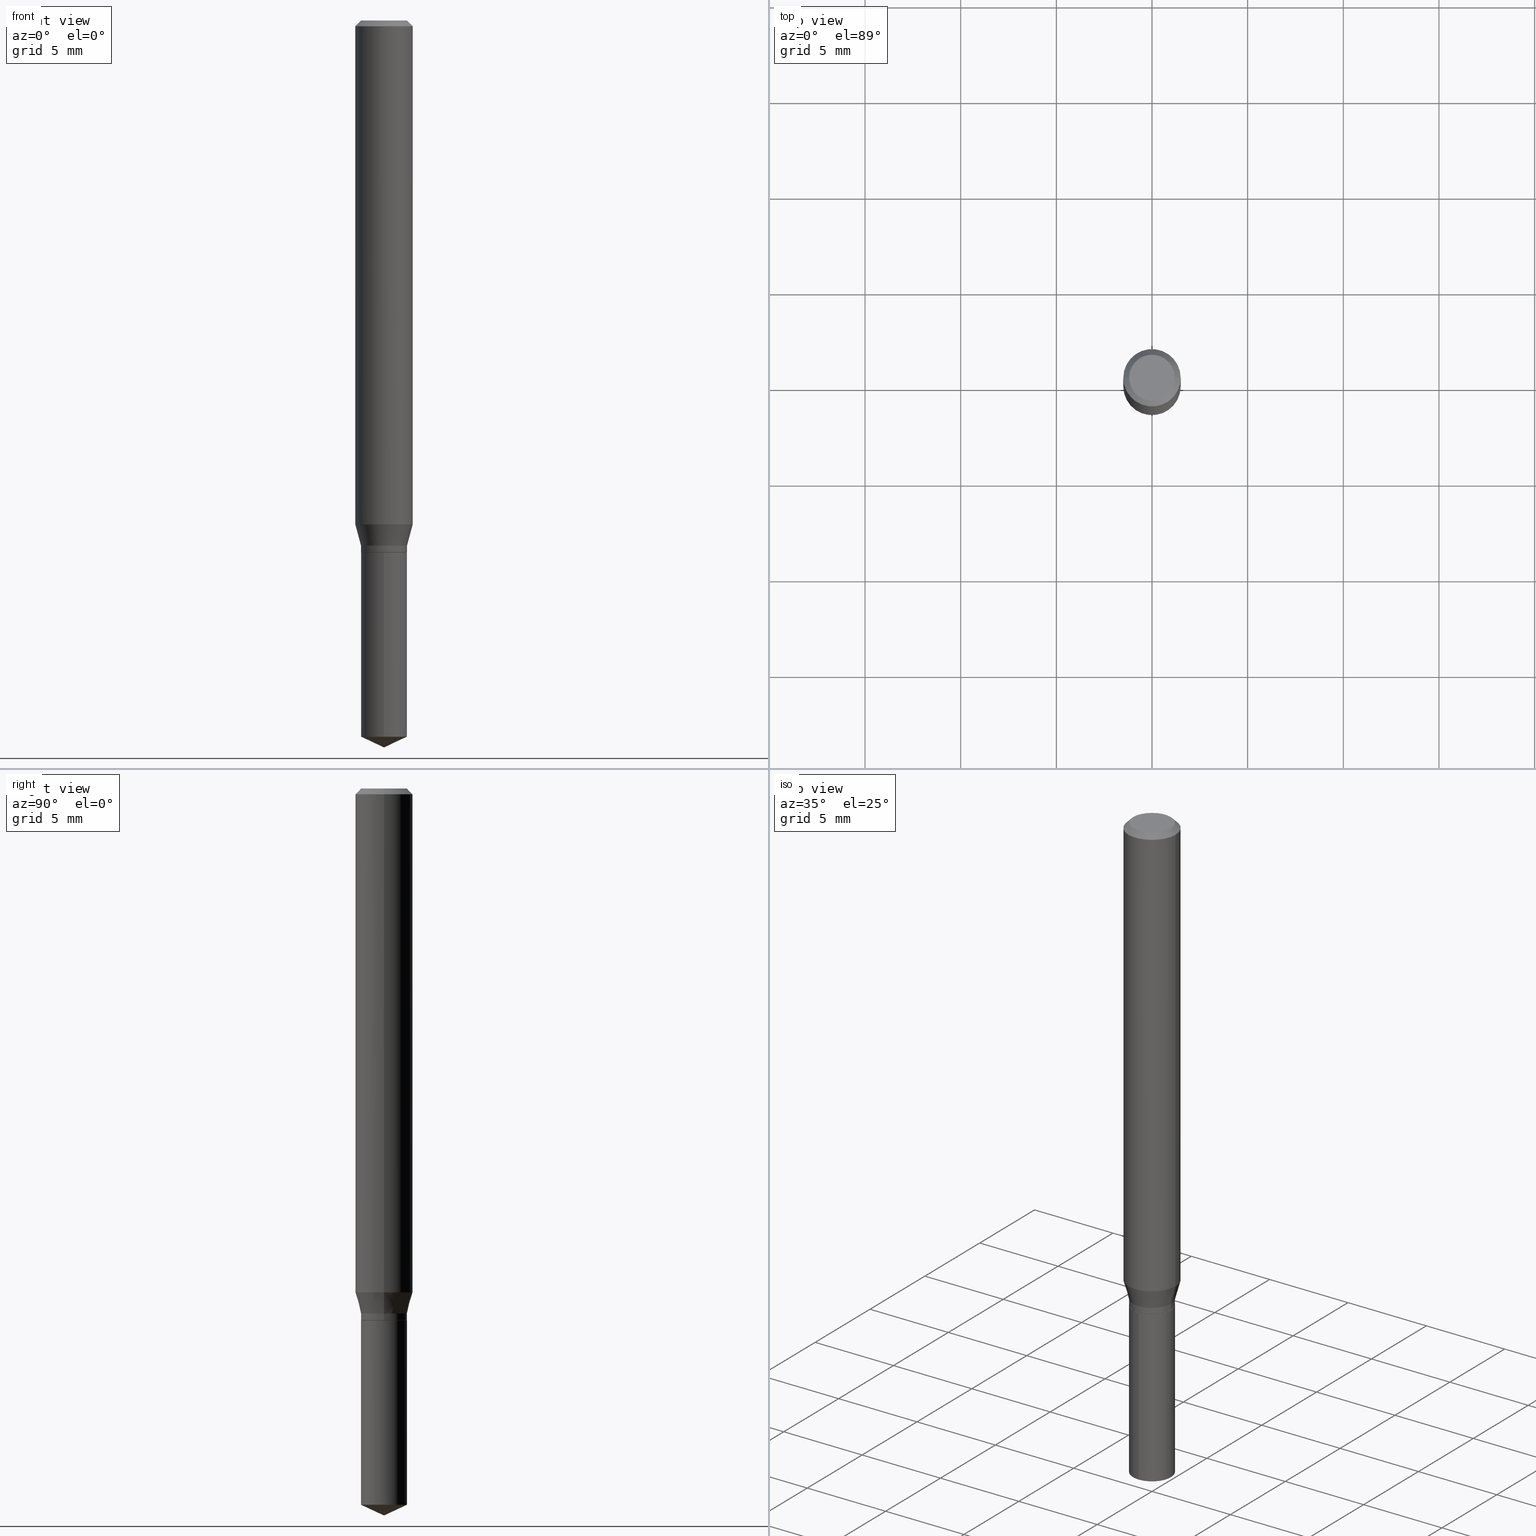
[diagram: canonical four-view strip — front | top / right | iso, engineering-drawing reading convention]
A machine part, canonical four-view strip (front | top / right | iso — engineering-drawing reading convention). The complete STEP part file that produces these views, byte-faithful:
ISO-10303-21;
HEADER;
FILE_DESCRIPTION (( 'STEP AP203' ),
    '1' );
FILE_NAME ('07650.STEP',
    '2024-04-24T00:23:26',
    ( '' ),
    ( '' ),
    'SwSTEP 2.0',
    'SolidWorks 2023',
    '' );
FILE_SCHEMA (( 'CONFIG_CONTROL_DESIGN' ));
ENDSEC;

DATA;
#1 = CARTESIAN_POINT ( 'NONE',  ( -0.04694999999999999174, -3.485177283750344594E-15, -1.094500000000000028 ) ) ;
#2 = APPROVAL_ROLE ( '' ) ;
#3 = CARTESIAN_POINT ( 'NONE',  ( -9.261924752013118283E-28, 1.322368428517963298E-13, 37.87397874015748300 ) ) ;
#4 = APPROVAL_PERSON_ORGANIZATION ( #404, #31, #17 ) ;
#5 = CC_DESIGN_PERSON_AND_ORGANIZATION_ASSIGNMENT ( #458, #324, ( #123 ) ) ;
#6 = ADVANCED_FACE ( 'NONE', ( #79 ), #54, .T. ) ;
#7 = CARTESIAN_POINT ( 'NONE',  ( 0.04744999999999997831, -4.103188869408462916E-15, -1.080300000000000038 ) ) ;
#8 = CARTESIAN_POINT ( 'NONE',  ( 2.641839951321803071E-29, -3.771847290352249705E-15, -1.080300000000000038 ) ) ;
#9 = DIRECTION ( 'NONE',  ( -2.445468806185136597E-29, 3.491481338843145583E-15, 1.000000000000000000 ) ) ;
#10 = CLOSED_SHELL ( 'NONE', ( #239, #52, #318, #60, #350 ) ) ;
#11 = VECTOR ( 'NONE', #68, 39.37007874015748143 ) ;
#12 = DIRECTION ( 'NONE',  ( 1.000000000000000000, -6.982962677686267499E-15, 0.000000000000000000 ) ) ;
#13 = CARTESIAN_POINT ( 'NONE',  ( 2.676565608369631794E-29, -3.821426325363822773E-15, -1.094499999999999806 ) ) ;
#14 = AXIS2_PLACEMENT_3D ( 'NONE', #15, #471, #126 ) ;
#15 = CARTESIAN_POINT ( 'NONE',  ( 0.000000000000000000, 0.000000000000000000, 0.000000000000000000 ) ) ;
#16 = AXIS2_PLACEMENT_3D ( 'NONE', #8, #163, #12 ) ;
#17 = APPROVAL_ROLE ( '' ) ;
#18 = ADVANCED_FACE ( 'NONE', ( #237 ), #412, .T. ) ;
#19 = ORIENTED_EDGE ( 'NONE', *, *, #378, .F. ) ;
#20 = DIRECTION ( 'NONE',  ( -2.445458899330790108E-29, 3.491495526022433599E-15, 1.000000000000000000 ) ) ;
#21 = AXIS2_PLACEMENT_3D ( 'NONE', #192, #142, #438 ) ;
#22 = EDGE_CURVE ( 'NONE', #408, #113, #132, .T. ) ;
#23 = ORIENTED_EDGE ( 'NONE', *, *, #377, .F. ) ;
#24 = EDGE_CURVE ( 'NONE', #315, #356, #136, .T. ) ;
#25 = AXIS2_PLACEMENT_3D ( 'NONE', #459, #379, #105 ) ;
#26 = EDGE_CURVE ( 'NONE', #356, #487, #248, .T. ) ;
#27 = PERSON_AND_ORGANIZATION_ROLE ( 'classification_officer' ) ;
#28 = EDGE_LOOP ( 'NONE', ( #61, #251, #212, #125 ) ) ;
#29 = PERSON ( 'UNSPECIFIED', 'UNSPECIFIED', 'UNSPECIFIED', ('UNSPECIFIED'), ('UNSPECIFIED'), ('UNSPECIFIED') ) ;
#30 = LINE ( 'NONE', #452, #161 ) ;
#31 = APPROVAL ( #199, 'UNSPECIFIED' ) ;
#32 = FACE_OUTER_BOUND ( 'NONE', #172, .T. ) ;
#33 = AXIS2_PLACEMENT_3D ( 'NONE', #247, #432, #131 ) ;
#34 = AXIS2_PLACEMENT_3D ( 'NONE', #242, #51, #203 ) ;
#35 =( GEOMETRIC_REPRESENTATION_CONTEXT ( 3 ) GLOBAL_UNCERTAINTY_ASSIGNED_CONTEXT ( ( #467 ) ) GLOBAL_UNIT_ASSIGNED_CONTEXT ( ( #75, #299, #40 ) ) REPRESENTATION_CONTEXT ( 'NONE', 'WORKASPACE' ) );
#36 = DIRECTION ( 'NONE',  ( -2.445468806185136597E-29, 3.491481338843145583E-15, 1.000000000000000000 ) ) ;
#37 = DIRECTION ( 'NONE',  ( 2.445468806185136597E-29, -3.491481338843145583E-15, -1.000000000000000000 ) ) ;
#38 = DIRECTION ( 'NONE',  ( 1.000000000000000000, -6.982962677686264344E-15, 0.000000000000000000 ) ) ;
#39 = CARTESIAN_POINT ( 'NONE',  ( 0.04744999999999997137, -4.151022163750613691E-15, -1.093999999999999861 ) ) ;
#40 =( NAMED_UNIT ( * ) SI_UNIT ( $, .STERADIAN. ) SOLID_ANGLE_UNIT ( ) );
#41 = EDGE_CURVE ( 'NONE', #373, #272, #211, .T. ) ;
#42 = LOCAL_TIME ( 20, 23, 26.00000000000000000, #258 ) ;
#43 =( LENGTH_UNIT ( ) NAMED_UNIT ( * ) SI_UNIT ( $, .METRE. ) );
#44 = ORIENTED_EDGE ( 'NONE', *, *, #70, .T. ) ;
#45 = ORIENTED_EDGE ( 'NONE', *, *, #255, .F. ) ;
#46 = EDGE_LOOP ( 'NONE', ( #397, #294, #433, #393 ) ) ;
#47 = VECTOR ( 'NONE', #376, 39.37007874015748143 ) ;
#48 = DIRECTION ( 'NONE',  ( 1.000000000000000000, -6.982962677686265922E-15, 4.876176775795935793E-29 ) ) ;
#49 = PERSON_AND_ORGANIZATION_ROLE ( 'creator' ) ;
#50 = CYLINDRICAL_SURFACE ( 'NONE', #14, 0.05905000000000006771 ) ;
#51 = DIRECTION ( 'NONE',  ( 2.438088387897960049E-29, -3.491481338843145188E-15, -1.000000000000000000 ) ) ;
#52 = ADVANCED_FACE ( 'NONE', ( #156 ), #448, .T. ) ;
#53 = ORIENTED_EDGE ( 'NONE', *, *, #241, .F. ) ;
#54 = CONICAL_SURFACE ( 'NONE', #65, 0.04694999999999999174, 0.7853981633972519916 ) ;
#55 = ORIENTED_EDGE ( 'NONE', *, *, #246, .F. ) ;
#56 = AXIS2_PLACEMENT_3D ( 'NONE', #216, #363, #413 ) ;
#57 = EDGE_LOOP ( 'NONE', ( #58, #354, #389, #23 ) ) ;
#58 = ORIENTED_EDGE ( 'NONE', *, *, #427, .F. ) ;
#59 = DIRECTION ( 'NONE',  ( -6.328713451373360701E-15, -0.9063077870366473832, 0.4226182617407049924 ) ) ;
#60 = ADVANCED_FACE ( 'NONE', ( #480 ), #219, .T. ) ;
#61 = ORIENTED_EDGE ( 'NONE', *, *, #26, .T. ) ;
#62 = CARTESIAN_POINT ( 'NONE',  ( 2.888098660104663328E-31, -4.123439461173779030E-17, -0.01181000000000006871 ) ) ;
#63 = DIRECTION ( 'NONE',  ( -2.445458899330790108E-29, 3.491495526022433205E-15, 1.000000000000000000 ) ) ;
#64 = EDGE_CURVE ( 'NONE', #315, #484, #274, .T. ) ;
#65 = AXIS2_PLACEMENT_3D ( 'NONE', #261, #305, #38 ) ;
#66 = PERSON_AND_ORGANIZATION_ROLE ( 'creator' ) ;
#67 = AXIS2_PLACEMENT_3D ( 'NONE', #180, #488, #260 ) ;
#68 = DIRECTION ( 'NONE',  ( -2.445458899330790108E-29, 3.491495526022433599E-15, 1.000000000000000000 ) ) ;
#69 = CARTESIAN_POINT ( 'NONE',  ( 3.604552949059590582E-29, -5.146357056815127930E-15, -1.473973701620545196 ) ) ;
#70 = EDGE_CURVE ( 'NONE', #356, #349, #137, .T. ) ;
#71 = CARTESIAN_POINT ( 'NONE',  ( -0.04744999999999997831, -3.434694762234082223E-15, -1.080300000000000038 ) ) ;
#72 = AXIS2_PLACEMENT_3D ( 'NONE', #482, #365, #287 ) ;
#73 = CARTESIAN_POINT ( 'NONE',  ( -0.04694999999999999174, -3.487826510924455795E-15, -1.094500000000000028 ) ) ;
#74 = EDGE_CURVE ( 'NONE', #431, #349, #469, .T. ) ;
#75 =( CONVERSION_BASED_UNIT ( 'INCH', #115 ) LENGTH_UNIT ( ) NAMED_UNIT ( #464 ) );
#76 = ORIENTED_EDGE ( 'NONE', *, *, #198, .T. ) ;
#77 = CARTESIAN_POINT ( 'NONE',  ( 3.658672935554494692E-29, -5.223595400746700193E-15, -1.496099999999999985 ) ) ;
#78 = CYLINDRICAL_SURFACE ( 'NONE', #352, 0.05905000000000006771 ) ;
#79 = FACE_OUTER_BOUND ( 'NONE', #201, .T. ) ;
#80 = EDGE_LOOP ( 'NONE', ( #90, #455 ) ) ;
#81 = VERTEX_POINT ( 'NONE', #337 ) ;
#82 = LINE ( 'NONE', #77, #298 ) ;
#83 = ORIENTED_EDGE ( 'NONE', *, *, #24, .F. ) ;
#84 = CONICAL_SURFACE ( 'NONE', #110, 84.42940631927338302, 1.134464013796311566 ) ;
#85 = LOCAL_TIME ( 20, 23, 26.00000000000000000, #447 ) ;
#86 = ORIENTED_EDGE ( 'NONE', *, *, #198, .F. ) ;
#87 = DIRECTION ( 'NONE',  ( 1.000000000000000000, -6.982962677686265133E-15, 0.000000000000000000 ) ) ;
#88 = DIRECTION ( 'NONE',  ( -2.445458899330790108E-29, 3.491495526022433205E-15, 1.000000000000000000 ) ) ;
#89 = APPLICATION_PROTOCOL_DEFINITION ( 'international standard', 'config_control_design', 1994, #396 ) ;
#90 = ORIENTED_EDGE ( 'NONE', *, *, #395, .T. ) ;
#91 = FACE_OUTER_BOUND ( 'NONE', #256, .T. ) ;
#92 = CALENDAR_DATE ( 2024, 23, 4 ) ;
#93 = VECTOR ( 'NONE', #268, 39.37007874015748143 ) ;
#94 = DIRECTION ( 'NONE',  ( 1.000000000000000000, -6.982962677686267499E-15, 0.000000000000000000 ) ) ;
#95 = CARTESIAN_POINT ( 'NONE',  ( 0.05904999999999999832, -4.463468013801466955E-16, -0.01181000000000006871 ) ) ;
#96 = APPROVAL_ROLE ( '' ) ;
#97 = ORIENTED_EDGE ( 'NONE', *, *, #171, .F. ) ;
#98 = CALENDAR_DATE ( 2024, 23, 4 ) ;
#99 = VECTOR ( 'NONE', #187, 39.37007874015748143 ) ;
#100 = CC_DESIGN_PERSON_AND_ORGANIZATION_ASSIGNMENT ( #322, #282, ( #388 ) ) ;
#101 = DIRECTION ( 'NONE',  ( -2.445458899330790108E-29, 3.491495526022433205E-15, 1.000000000000000000 ) ) ;
#102 = AXIS2_PLACEMENT_3D ( 'NONE', #420, #36, #264 ) ;
#103 = MANIFOLD_SOLID_BREP ( 'Body-Move/Copy2[2]', #153 ) ;
#104 = CARTESIAN_POINT ( 'NONE',  ( 3.371525281182035237E-16, 0.04744999999999616885, -1.094500000000000028 ) ) ;
#105 = DIRECTION ( 'NONE',  ( 1.000000000000000000, -6.982962677686266711E-15, 4.876185090822587894E-29 ) ) ;
#106 = CARTESIAN_POINT ( 'NONE',  ( 2.641839951321803071E-29, -3.771847290352249705E-15, -1.080300000000000038 ) ) ;
#107 = FACE_OUTER_BOUND ( 'NONE', #206, .T. ) ;
#108 = APPLICATION_PROTOCOL_DEFINITION ( 'international standard', 'config_control_design', 1994, #267 ) ;
#109 = PRODUCT_RELATED_PRODUCT_CATEGORY ( 'detail', '', ( #388 ) ) ;
#110 = AXIS2_PLACEMENT_3D ( 'NONE', #3, #101, #154 ) ;
#111 = ADVANCED_FACE ( 'NONE', ( #368 ), #166, .T. ) ;
#112 = DIRECTION ( 'NONE',  ( 0.2588190451025214611, 1.565188264969620982E-15, 0.9659258262890679791 ) ) ;
#113 = VERTEX_POINT ( 'NONE', #104 ) ;
#114 = ADVANCED_FACE ( 'NONE', ( #91 ), #402, .F. ) ;
#115 = LENGTH_MEASURE_WITH_UNIT ( LENGTH_MEASURE( 0.02539999999999999897 ), #43 );
#116 = ORIENTED_EDGE ( 'NONE', *, *, #255, .T. ) ;
#117 = PLANE ( 'NONE',  #308 ) ;
#118 = VERTEX_POINT ( 'NONE', #145 ) ;
#119 = CC_DESIGN_DATE_AND_TIME_ASSIGNMENT ( #178, #225, ( #385 ) ) ;
#120 = VECTOR ( 'NONE', #444, 39.37007874015748143 ) ;
#121 = CIRCLE ( 'NONE', #193, 0.04744999999999999218 ) ;
#122 = ORIENTED_EDGE ( 'NONE', *, *, #472, .F. ) ;
#123 = PRODUCT_DEFINITION_FORMATION_WITH_SPECIFIED_SOURCE ( 'ANY', '', #388, .NOT_KNOWN. ) ;
#124 = EDGE_CURVE ( 'NONE', #81, #189, #450, .T. ) ;
#125 = ORIENTED_EDGE ( 'NONE', *, *, #70, .F. ) ;
#126 = DIRECTION ( 'NONE',  ( 1.000000000000000000, -6.982962677686266711E-15, 4.876176775795936353E-29 ) ) ;
#127 = DIRECTION ( 'NONE',  ( -2.445468806185136597E-29, 3.491481338843145583E-15, 1.000000000000000000 ) ) ;
#128 = ORIENTED_EDGE ( 'NONE', *, *, #328, .F. ) ;
#129 = DATE_AND_TIME ( #473, #231 ) ;
#130 = DIRECTION ( 'NONE',  ( -6.982962677686266711E-15, -1.000000000000000000, 5.757319270103822354E-15 ) ) ;
#131 = DIRECTION ( 'NONE',  ( 1.000000000000000000, -6.982962677686269077E-15, 0.000000000000000000 ) ) ;
#132 = CIRCLE ( 'NONE', #338, 0.04744999999999999218 ) ;
#133 = EDGE_CURVE ( 'NONE', #238, #189, #249, .T. ) ;
#134 = AXIS2_PLACEMENT_3D ( 'NONE', #360, #460, #456 ) ;
#135 = CIRCLE ( 'NONE', #102, 0.04744999999999997137 ) ;
#136 = LINE ( 'NONE', #286, #120 ) ;
#137 = LINE ( 'NONE', #445, #457 ) ;
#138 = ORIENTED_EDGE ( 'NONE', *, *, #133, .F. ) ;
#139 = APPROVAL_DATE_TIME ( #409, #443 ) ;
#140 = CARTESIAN_POINT ( 'NONE',  ( 0.05904999999999999832, -4.535783407291118600E-16, -0.01181000000000006871 ) ) ;
#141 = FACE_OUTER_BOUND ( 'NONE', #28, .T. ) ;
#142 = DIRECTION ( 'NONE',  ( 0.000000000000000000, 0.000000000000000000, 1.000000000000000000 ) ) ;
#143 = DIRECTION ( 'NONE',  ( -6.982962677686266711E-15, -1.000000000000000000, 2.878659635051911177E-15 ) ) ;
#144 = APPROVAL ( #181, 'UNSPECIFIED' ) ;
#145 = CARTESIAN_POINT ( 'NONE',  ( -0.04724000000000000421, 3.504923541997677355E-16, -3.380025165670481712E-19 ) ) ;
#146 = CIRCLE ( 'NONE', #72, 0.04694999999999999174 ) ;
#147 = CIRCLE ( 'NONE', #470, 0.04724000000000000421 ) ;
#148 = DATE_AND_TIME ( #489, #290 ) ;
#149 = CARTESIAN_POINT ( 'NONE',  ( 0.04694999999999999174, -4.149276423081192976E-15, -1.094500000000000028 ) ) ;
#150 = CALENDAR_DATE ( 2024, 23, 4 ) ;
#151 = SHAPE_DEFINITION_REPRESENTATION ( #319, #195 ) ;
#152 = DIRECTION ( 'NONE',  ( 1.000000000000000000, -6.982962677686265133E-15, 0.000000000000000000 ) ) ;
#153 = CLOSED_SHELL ( 'NONE', ( #111, #344, #179, #18, #244, #222, #422, #311, #446, #208, #114, #6 ) ) ;
#154 = DIRECTION ( 'NONE',  ( -6.982962677686267499E-15, -1.000000000000000000, 3.520397390770493707E-15 ) ) ;
#155 = DIRECTION ( 'NONE',  ( -2.445468806185136597E-29, 3.491481338843145583E-15, 1.000000000000000000 ) ) ;
#156 = FACE_OUTER_BOUND ( 'NONE', #411, .T. ) ;
#157 = CARTESIAN_POINT ( 'NONE',  ( 3.658651059288794515E-29, -5.223626456482161457E-15, -1.496099999999999985 ) ) ;
#158 = LINE ( 'NONE', #73, #47 ) ;
#159 = EDGE_CURVE ( 'NONE', #331, #189, #333, .T. ) ;
#160 = CARTESIAN_POINT ( 'NONE',  ( 8.265746106709734507E-48, -1.180129479067563789E-33, -3.380025165646692144E-19 ) ) ;
#161 = VECTOR ( 'NONE', #257, 39.37007874015748143 ) ;
#162 = ORIENTED_EDGE ( 'NONE', *, *, #292, .F. ) ;
#163 = DIRECTION ( 'NONE',  ( -2.445468806185136597E-29, 3.491481338843145583E-15, 1.000000000000000000 ) ) ;
#164 = EDGE_LOOP ( 'NONE', ( #374, #348, #162 ) ) ;
#165 = EDGE_CURVE ( 'NONE', #490, #272, #82, .T. ) ;
#166 = CONICAL_SURFACE ( 'NONE', #67, 0.04694999999999999174, 0.7853981633972519916 ) ;
#167 = AXIS2_PLACEMENT_3D ( 'NONE', #390, #435, #87 ) ;
#168 = ORIENTED_EDGE ( 'NONE', *, *, #378, .T. ) ;
#169 = LOCAL_TIME ( 20, 23, 26.00000000000000000, #405 ) ;
#170 = ORIENTED_EDGE ( 'NONE', *, *, #74, .F. ) ;
#171 = EDGE_CURVE ( 'NONE', #279, #331, #421, .T. ) ;
#172 = EDGE_LOOP ( 'NONE', ( #436, #116 ) ) ;
#173 = PERSON_AND_ORGANIZATION ( #29, #415 ) ;
#174 = MECHANICAL_CONTEXT ( 'NONE', #267, 'mechanical' ) ;
#175 = AXIS2_PLACEMENT_3D ( 'NONE', #441, #127, #48 ) ;
#176 = ORIENTED_EDGE ( 'NONE', *, *, #330, .T. ) ;
#177 = EDGE_LOOP ( 'NONE', ( #285, #320, #361, #138 ) ) ;
#178 = DATE_AND_TIME ( #150, #169 ) ;
#179 = ADVANCED_FACE ( 'NONE', ( #353 ), #50, .T. ) ;
#180 = CARTESIAN_POINT ( 'NONE',  ( 2.676565608369632355E-29, -3.821426325363822773E-15, -1.094500000000000028 ) ) ;
#181 = APPROVAL_STATUS ( 'not_yet_approved' ) ;
#182 = DIRECTION ( 'NONE',  ( -2.445458899330790108E-29, 3.491495526022433205E-15, 1.000000000000000000 ) ) ;
#183 = EDGE_LOOP ( 'NONE', ( #53, #217, #44, #170 ) ) ;
#184 = AXIS2_PLACEMENT_3D ( 'NONE', #262, #229, #465 ) ;
#185 = ORIENTED_EDGE ( 'NONE', *, *, #64, .T. ) ;
#186 = CARTESIAN_POINT ( 'NONE',  ( 3.371525281182034744E-16, 0.04744999999999483659, -1.473973701620545418 ) ) ;
#187 = DIRECTION ( 'NONE',  ( 0.7071067811865453523, -7.319954787623248157E-15, -0.7071067811865496822 ) ) ;
#188 = SECURITY_CLASSIFICATION_LEVEL ( 'unclassified' ) ;
#189 = VERTEX_POINT ( 'NONE', #140 ) ;
#190 = DIRECTION ( 'NONE',  ( 1.000000000000000000, -6.982962677686266711E-15, 4.876176775795936353E-29 ) ) ;
#191 = DIRECTION ( 'NONE',  ( 1.000000000000000000, -6.982962677686266711E-15, 0.000000000000000000 ) ) ;
#192 = CARTESIAN_POINT ( 'NONE',  ( 0.000000000000000000, 0.000000000000000000, 0.000000000000000000 ) ) ;
#193 = AXIS2_PLACEMENT_3D ( 'NONE', #69, #63, #366 ) ;
#194 = CARTESIAN_POINT ( 'NONE',  ( 2.641839951321803071E-29, -3.771847290352249705E-15, -1.080300000000000038 ) ) ;
#195 = ADVANCED_BREP_SHAPE_REPRESENTATION ( '07650', ( #273, #103, #21 ), #35 ) ;
#196 = AXIS2_PLACEMENT_3D ( 'NONE', #398, #358, #323 ) ;
#197 = CONICAL_SURFACE ( 'NONE', #16, 0.04744999999999997831, 0.2617993877991501850 ) ;
#198 = EDGE_CURVE ( 'NONE', #373, #408, #214, .T. ) ;
#199 = APPROVAL_STATUS ( 'not_yet_approved' ) ;
#200 = DIRECTION ( 'NONE',  ( -2.445468806185136597E-29, 3.491481338843145583E-15, 1.000000000000000000 ) ) ;
#201 = EDGE_LOOP ( 'NONE', ( #19, #355, #380, #122 ) ) ;
#202 = DIRECTION ( 'NONE',  ( 6.439704144417016154E-15, 0.9063077870366503808, 0.4226182617406986641 ) ) ;
#203 = DIRECTION ( 'NONE',  ( -1.000000000000000000, 6.982962677686265922E-15, -4.876176775795935793E-29 ) ) ;
#204 = CIRCLE ( 'NONE', #391, 0.04744999999999997831 ) ;
#205 = SECURITY_CLASSIFICATION ( '', '', #188 ) ;
#206 = EDGE_LOOP ( 'NONE', ( #481, #430, #386, #97 ) ) ;
#207 = DESIGN_CONTEXT ( 'detailed design', #396, 'design' ) ;
#208 = ADVANCED_FACE ( 'NONE', ( #387 ), #477, .F. ) ;
#209 = ORIENTED_EDGE ( 'NONE', *, *, #263, .F. ) ;
#210 = CARTESIAN_POINT ( 'NONE',  ( -0.05904999999999999832, -1.411389119664253704E-15, -0.01181000000000006871 ) ) ;
#211 = CIRCLE ( 'NONE', #414, 0.04744999999999999218 ) ;
#212 = ORIENTED_EDGE ( 'NONE', *, *, #330, .F. ) ;
#213 = PERSON_AND_ORGANIZATION ( #29, #415 ) ;
#214 = LINE ( 'NONE', #351, #449 ) ;
#215 = FACE_OUTER_BOUND ( 'NONE', #57, .T. ) ;
#216 = CARTESIAN_POINT ( 'NONE',  ( 0.000000000000000000, 0.000000000000000000, 0.000000000000000000 ) ) ;
#217 = ORIENTED_EDGE ( 'NONE', *, *, #472, .T. ) ;
#218 = APPROVAL_DATE_TIME ( #148, #144 ) ;
#219 = CYLINDRICAL_SURFACE ( 'NONE', #266, 0.04744999999999999218 ) ;
#220 = CIRCLE ( 'NONE', #346, 0.05904999999999999832 ) ;
#221 = EDGE_LOOP ( 'NONE', ( #454, #364, #440, #86 ) ) ;
#222 = ADVANCED_FACE ( 'NONE', ( #439 ), #276, .T. ) ;
#223 = CARTESIAN_POINT ( 'NONE',  ( 2.535971230858911945E-29, -3.620694815649450242E-15, -1.037008210632200500 ) ) ;
#224 = CARTESIAN_POINT ( 'NONE',  ( 2.676565608369631794E-29, -3.821426325363822773E-15, -1.094499999999999806 ) ) ;
#225 = DATE_TIME_ROLE ( 'creation_date' ) ;
#226 = ORIENTED_EDGE ( 'NONE', *, *, #377, .T. ) ;
#227 = DIRECTION ( 'NONE',  ( -2.445468806185136877E-29, 3.491481338843145188E-15, 1.000000000000000000 ) ) ;
#228 = DIRECTION ( 'NONE',  ( -6.982962677686266711E-15, -1.000000000000000000, 2.878659635051911177E-15 ) ) ;
#229 = DIRECTION ( 'NONE',  ( 2.445468806185136597E-29, -3.491481338843145583E-15, -1.000000000000000000 ) ) ;
#230 = CC_DESIGN_PERSON_AND_ORGANIZATION_ASSIGNMENT ( #334, #27, ( #205 ) ) ;
#231 = LOCAL_TIME ( 20, 23, 26.00000000000000000, #394 ) ;
#232 = FACE_OUTER_BOUND ( 'NONE', #177, .T. ) ;
#233 = CARTESIAN_POINT ( 'NONE',  ( -0.04744999999999997137, -3.458611409405157610E-15, -1.093999999999999861 ) ) ;
#234 = LINE ( 'NONE', #71, #93 ) ;
#235 = AXIS2_PLACEMENT_3D ( 'NONE', #326, #483, #293 ) ;
#236 = VECTOR ( 'NONE', #343, 39.37007874015748143 ) ;
#237 = FACE_OUTER_BOUND ( 'NONE', #291, .T. ) ;
#238 = VERTEX_POINT ( 'NONE', #210 ) ;
#239 = ADVANCED_FACE ( 'NONE', ( #316 ), #475, .T. ) ;
#240 = VECTOR ( 'NONE', #59, 39.37007874015748143 ) ;
#241 = EDGE_CURVE ( 'NONE', #487, #431, #30, .T. ) ;
#242 = CARTESIAN_POINT ( 'NONE',  ( 4.132873053354867254E-48, -5.900647395337818946E-34, -1.690012582823346072E-19 ) ) ;
#243 = DIRECTION ( 'NONE',  ( -6.982962677686266711E-15, -1.000000000000000000, 2.878659635051911177E-15 ) ) ;
#244 = ADVANCED_FACE ( 'NONE', ( #141 ), #335, .T. ) ;
#245 = DIRECTION ( 'NONE',  ( -2.445458899330790108E-29, 3.491495526022433205E-15, 1.000000000000000000 ) ) ;
#246 = EDGE_CURVE ( 'NONE', #331, #279, #382, .T. ) ;
#247 = CARTESIAN_POINT ( 'NONE',  ( 2.675342873966538993E-29, -3.819680584694400481E-15, -1.093999999999999861 ) ) ;
#248 = CIRCLE ( 'NONE', #33, 0.04744999999999997137 ) ;
#249 = CIRCLE ( 'NONE', #476, 0.05904999999999999832 ) ;
#250 = CC_DESIGN_APPROVAL ( #443, ( #123 ) ) ;
#251 = ORIENTED_EDGE ( 'NONE', *, *, #241, .T. ) ;
#252 = LINE ( 'NONE', #403, #240 ) ;
#253 = FACE_OUTER_BOUND ( 'NONE', #164, .T. ) ;
#254 = LINE ( 'NONE', #259, #11 ) ;
#255 = EDGE_CURVE ( 'NONE', #113, #408, #339, .T. ) ;
#256 = EDGE_LOOP ( 'NONE', ( #275, #128 ) ) ;
#257 = DIRECTION ( 'NONE',  ( -2.445468806185136877E-29, 3.491481338843145188E-15, 1.000000000000000000 ) ) ;
#258 = COORDINATED_UNIVERSAL_TIME_OFFSET ( 5, 0, .BEHIND. ) ;
#259 = CARTESIAN_POINT ( 'NONE',  ( 3.371525281181942053E-16, 0.04744999999999616885, -1.094500000000000028 ) ) ;
#260 = DIRECTION ( 'NONE',  ( 1.000000000000000000, -6.982962677686264344E-15, 0.000000000000000000 ) ) ;
#261 = CARTESIAN_POINT ( 'NONE',  ( 2.676565608369632355E-29, -3.821426325363822773E-15, -1.094500000000000028 ) ) ;
#262 = CARTESIAN_POINT ( 'NONE',  ( 2.888098660104663328E-31, -4.123439461173779030E-17, -0.01181000000000006871 ) ) ;
#263 = EDGE_CURVE ( 'NONE', #272, #113, #254, .T. ) ;
#264 = DIRECTION ( 'NONE',  ( 1.000000000000000000, -6.982962677686269077E-15, 0.000000000000000000 ) ) ;
#265 = DIRECTION ( 'NONE',  ( 1.000000000000000000, -6.982962677686266711E-15, 4.876185090822587894E-29 ) ) ;
#266 = AXIS2_PLACEMENT_3D ( 'NONE', #332, #245, #143 ) ;
#267 = APPLICATION_CONTEXT ( 'configuration controlled 3d designs of mechanical parts and assemblies' ) ;
#268 = DIRECTION ( 'NONE',  ( -0.2588190451025214611, 5.211531920934550253E-15, 0.9659258262890679791 ) ) ;
#269 = ORIENTED_EDGE ( 'NONE', *, *, #165, .T. ) ;
#270 = CC_DESIGN_DATE_AND_TIME_ASSIGNMENT ( #362, #485, ( #205 ) ) ;
#271 = CARTESIAN_POINT ( 'NONE',  ( -0.04744999999999997831, -3.458611409405157610E-15, -1.080300000000000038 ) ) ;
#272 = VERTEX_POINT ( 'NONE', #186 ) ;
#273 = MANIFOLD_SOLID_BREP ( 'Body-Move/Copy2[1]', #10 ) ;
#274 = CIRCLE ( 'NONE', #196, 0.04694999999999999174 ) ;
#275 = ORIENTED_EDGE ( 'NONE', *, *, #64, .F. ) ;
#276 = CYLINDRICAL_SURFACE ( 'NONE', #175, 0.04744999999999997831 ) ;
#277 = ORIENTED_EDGE ( 'NONE', *, *, #292, .T. ) ;
#278 = APPROVAL_DATE_TIME ( #129, #31 ) ;
#279 = VERTEX_POINT ( 'NONE', #369 ) ;
#280 = AXIS2_PLACEMENT_3D ( 'NONE', #62, #37, #310 ) ;
#281 = CARTESIAN_POINT ( 'NONE',  ( 3.604552949059590582E-29, -5.146357056815127930E-15, -1.473973701620545196 ) ) ;
#282 = PERSON_AND_ORGANIZATION_ROLE ( 'design_owner' ) ;
#283 = EDGE_CURVE ( 'NONE', #279, #238, #329, .T. ) ;
#284 = ORIENTED_EDGE ( 'NONE', *, *, #124, .F. ) ;
#285 = ORIENTED_EDGE ( 'NONE', *, *, #283, .F. ) ;
#286 = CARTESIAN_POINT ( 'NONE',  ( 0.04694999999999999174, -4.149276423081192976E-15, -1.094500000000000028 ) ) ;
#287 = DIRECTION ( 'NONE',  ( 1.000000000000000000, -6.982962677686264344E-15, 0.000000000000000000 ) ) ;
#288 = DIRECTION ( 'NONE',  ( -6.982962677686266711E-15, -1.000000000000000000, 2.878659635051911177E-15 ) ) ;
#289 = AXIS2_PLACEMENT_3D ( 'NONE', #223, #155, #152 ) ;
#290 = LOCAL_TIME ( 20, 23, 26.00000000000000000, #327 ) ;
#291 = EDGE_LOOP ( 'NONE', ( #176, #296, #55, #342 ) ) ;
#292 = EDGE_CURVE ( 'NONE', #272, #373, #121, .T. ) ;
#293 = DIRECTION ( 'NONE',  ( 1.000000000000000000, -6.982962677686265922E-15, 4.876176775795935793E-29 ) ) ;
#294 = ORIENTED_EDGE ( 'NONE', *, *, #283, .T. ) ;
#295 = APPROVAL_STATUS ( 'not_yet_approved' ) ;
#296 = ORIENTED_EDGE ( 'NONE', *, *, #479, .T. ) ;
#297 = ORIENTED_EDGE ( 'NONE', *, *, #336, .F. ) ;
#298 = VECTOR ( 'NONE', #202, 39.37007874015748854 ) ;
#299 =( NAMED_UNIT ( * ) PLANE_ANGLE_UNIT ( ) SI_UNIT ( $, .RADIAN. ) );
#300 = ORIENTED_EDGE ( 'NONE', *, *, #41, .F. ) ;
#301 = CC_DESIGN_PERSON_AND_ORGANIZATION_ASSIGNMENT ( #173, #49, ( #385 ) ) ;
#302 = CARTESIAN_POINT ( 'NONE',  ( -9.261924752013118283E-28, 1.322368428517963298E-13, 37.87397874015748300 ) ) ;
#303 = CARTESIAN_POINT ( 'NONE',  ( -3.313415790561865369E-16, -0.04745000000000382245, -1.094499999999999806 ) ) ;
#304 = CARTESIAN_POINT ( 'NONE',  ( 0.04744999999999997831, -4.103188869408462916E-15, -1.080300000000000038 ) ) ;
#305 = DIRECTION ( 'NONE',  ( -2.445468806185136597E-29, 3.491481338843145583E-15, 1.000000000000000000 ) ) ;
#306 = CARTESIAN_POINT ( 'NONE',  ( -0.05904999999999999832, 3.711095515056362547E-16, -0.01181000000000006871 ) ) ;
#307 = DIRECTION ( 'NONE',  ( -2.445468806185136597E-29, 3.491481338843145583E-15, 1.000000000000000000 ) ) ;
#308 = AXIS2_PLACEMENT_3D ( 'NONE', #463, #426, #478 ) ;
#309 = APPROVAL_PERSON_ORGANIZATION ( #451, #144, #96 ) ;
#310 = DIRECTION ( 'NONE',  ( -1.000000000000000000, 6.982962677686266711E-15, 0.000000000000000000 ) ) ;
#311 = ADVANCED_FACE ( 'NONE', ( #232 ), #78, .T. ) ;
#312 = FACE_OUTER_BOUND ( 'NONE', #313, .T. ) ;
#313 = EDGE_LOOP ( 'NONE', ( #284, #410, #226, #425 ) ) ;
#314 = EDGE_LOOP ( 'NONE', ( #185, #168, #384, #83 ) ) ;
#315 = VERTEX_POINT ( 'NONE', #149 ) ;
#316 = FACE_OUTER_BOUND ( 'NONE', #221, .T. ) ;
#317 = AXIS2_PLACEMENT_3D ( 'NONE', #13, #88, #243 ) ;
#318 = ADVANCED_FACE ( 'NONE', ( #253 ), #84, .T. ) ;
#319 = PRODUCT_DEFINITION_SHAPE ( 'NONE', 'NONE',  #385 ) ;
#320 = ORIENTED_EDGE ( 'NONE', *, *, #171, .T. ) ;
#321 = CIRCLE ( 'NONE', #25, 0.04724000000000000421 ) ;
#322 = PERSON_AND_ORGANIZATION ( #29, #415 ) ;
#323 = DIRECTION ( 'NONE',  ( 1.000000000000000000, -6.982962677686264344E-15, 0.000000000000000000 ) ) ;
#324 = PERSON_AND_ORGANIZATION_ROLE ( 'design_supplier' ) ;
#325 = CARTESIAN_POINT ( 'NONE',  ( 0.05905000000000013016, -4.033038761766825162E-15, -1.037008210632200500 ) ) ;
#326 = CARTESIAN_POINT ( 'NONE',  ( 4.530180386399367457E-30, -7.005673001684947290E-15, -1.094500000000000028 ) ) ;
#327 = COORDINATED_UNIVERSAL_TIME_OFFSET ( 5, 0, .BEHIND. ) ;
#328 = EDGE_CURVE ( 'NONE', #484, #315, #146, .T. ) ;
#329 = LINE ( 'NONE', #406, #429 ) ;
#330 = EDGE_CURVE ( 'NONE', #349, #431, #204, .T. ) ;
#331 = VERTEX_POINT ( 'NONE', #325 ) ;
#332 = CARTESIAN_POINT ( 'NONE',  ( 2.676565608369631794E-29, -3.821426325363822773E-15, -1.094499999999999806 ) ) ;
#333 = LINE ( 'NONE', #428, #367 ) ;
#334 = PERSON_AND_ORGANIZATION ( #29, #415 ) ;
#335 = CYLINDRICAL_SURFACE ( 'NONE', #56, 0.04744999999999997831 ) ;
#336 = EDGE_CURVE ( 'NONE', #490, #373, #252, .T. ) ;
#337 = CARTESIAN_POINT ( 'NONE',  ( 0.04724000000000000421, -3.852183633974369345E-16, -3.380025165621689721E-19 ) ) ;
#338 = AXIS2_PLACEMENT_3D ( 'NONE', #224, #419, #228 ) ;
#339 = CIRCLE ( 'NONE', #399, 0.04744999999999999218 ) ;
#340 = CC_DESIGN_APPROVAL ( #31, ( #385 ) ) ;
#341 = CARTESIAN_POINT ( 'NONE',  ( 2.888098660104663328E-31, -4.123439461173779030E-17, -0.01181000000000006871 ) ) ;
#342 = ORIENTED_EDGE ( 'NONE', *, *, #434, .F. ) ;
#343 = DIRECTION ( 'NONE',  ( -0.7071067811865453523, 2.468850131082234184E-15, -0.7071067811865496822 ) ) ;
#344 = ADVANCED_FACE ( 'NONE', ( #215 ), #437, .T. ) ;
#345 = DIRECTION ( 'NONE',  ( -2.445468806185136597E-29, 3.491481338843145583E-15, 1.000000000000000000 ) ) ;
#346 = AXIS2_PLACEMENT_3D ( 'NONE', #341, #345, #423 ) ;
#347 = VECTOR ( 'NONE', #112, 39.37007874015748143 ) ;
#348 = ORIENTED_EDGE ( 'NONE', *, *, #336, .T. ) ;
#349 = VERTEX_POINT ( 'NONE', #304 ) ;
#350 = ADVANCED_FACE ( 'NONE', ( #32 ), #117, .F. ) ;
#351 = CARTESIAN_POINT ( 'NONE',  ( -3.313415790561865369E-16, -0.04745000000000382245, -1.094499999999999806 ) ) ;
#352 = AXIS2_PLACEMENT_3D ( 'NONE', #383, #9, #190 ) ;
#353 = FACE_OUTER_BOUND ( 'NONE', #46, .T. ) ;
#354 = ORIENTED_EDGE ( 'NONE', *, *, #124, .T. ) ;
#355 = ORIENTED_EDGE ( 'NONE', *, *, #328, .T. ) ;
#356 = VERTEX_POINT ( 'NONE', #39 ) ;
#357 = CC_DESIGN_SECURITY_CLASSIFICATION ( #205, ( #123 ) ) ;
#358 = DIRECTION ( 'NONE',  ( -2.445468806185136597E-29, 3.491481338843145583E-15, 1.000000000000000000 ) ) ;
#359 = DIRECTION ( 'NONE',  ( -2.445468806185136597E-29, 3.491481338843145583E-15, 1.000000000000000000 ) ) ;
#360 = CARTESIAN_POINT ( 'NONE',  ( 2.641839951321803071E-29, -3.771847290352249705E-15, -1.080300000000000038 ) ) ;
#361 = ORIENTED_EDGE ( 'NONE', *, *, #159, .T. ) ;
#362 = DATE_AND_TIME ( #92, #85 ) ;
#363 = DIRECTION ( 'NONE',  ( -2.445468806185136597E-29, 3.491481338843145583E-15, 1.000000000000000000 ) ) ;
#364 = ORIENTED_EDGE ( 'NONE', *, *, #263, .T. ) ;
#365 = DIRECTION ( 'NONE',  ( -2.445468806185136597E-29, 3.491481338843145583E-15, 1.000000000000000000 ) ) ;
#366 = DIRECTION ( 'NONE',  ( -6.982962677686266711E-15, -1.000000000000000000, 5.757319270103822354E-15 ) ) ;
#367 = VECTOR ( 'NONE', #474, 39.37007874015748143 ) ;
#368 = FACE_OUTER_BOUND ( 'NONE', #314, .T. ) ;
#369 = CARTESIAN_POINT ( 'NONE',  ( -0.05905000000000013016, -3.201119330183110355E-15, -1.037008210632200500 ) ) ;
#370 = DIRECTION ( 'NONE',  ( -2.445458899330790108E-29, 3.491495526022433205E-15, 1.000000000000000000 ) ) ;
#371 = DIRECTION ( 'NONE',  ( -2.445468806185136597E-29, 3.491481338843145583E-15, 1.000000000000000000 ) ) ;
#372 = EDGE_CURVE ( 'NONE', #189, #238, #220, .T. ) ;
#373 = VERTEX_POINT ( 'NONE', #424 ) ;
#374 = ORIENTED_EDGE ( 'NONE', *, *, #165, .F. ) ;
#375 = CC_DESIGN_APPROVAL ( #144, ( #205 ) ) ;
#376 = DIRECTION ( 'NONE',  ( -0.7071067811864086838, 7.493145998869852445E-15, 0.7071067811866863506 ) ) ;
#377 = EDGE_CURVE ( 'NONE', #118, #238, #381, .T. ) ;
#378 = EDGE_CURVE ( 'NONE', #484, #487, #158, .T. ) ;
#379 = DIRECTION ( 'NONE',  ( -2.445468806185136597E-29, 3.491481338843145583E-15, 1.000000000000000000 ) ) ;
#380 = ORIENTED_EDGE ( 'NONE', *, *, #24, .T. ) ;
#381 = LINE ( 'NONE', #306, #236 ) ;
#382 = CIRCLE ( 'NONE', #289, 0.05905000000000013016 ) ;
#383 = CARTESIAN_POINT ( 'NONE',  ( 0.000000000000000000, 0.000000000000000000, 0.000000000000000000 ) ) ;
#384 = ORIENTED_EDGE ( 'NONE', *, *, #26, .F. ) ;
#385 = PRODUCT_DEFINITION ( 'UNKNOWN', '', #123, #207 ) ;
#386 = ORIENTED_EDGE ( 'NONE', *, *, #434, .T. ) ;
#387 = FACE_OUTER_BOUND ( 'NONE', #80, .T. ) ;
#388 = PRODUCT ( '07650', '07650', '', ( #174 ) ) ;
#389 = ORIENTED_EDGE ( 'NONE', *, *, #372, .T. ) ;
#390 = CARTESIAN_POINT ( 'NONE',  ( 2.535971230858911945E-29, -3.620694815649450242E-15, -1.037008210632200500 ) ) ;
#391 = AXIS2_PLACEMENT_3D ( 'NONE', #106, #359, #94 ) ;
#392 = CONICAL_SURFACE ( 'NONE', #184, 0.05904999999999999832, 0.7853981633974452814 ) ;
#393 = ORIENTED_EDGE ( 'NONE', *, *, #159, .F. ) ;
#394 = COORDINATED_UNIVERSAL_TIME_OFFSET ( 5, 0, .BEHIND. ) ;
#395 = EDGE_CURVE ( 'NONE', #118, #81, #147, .T. ) ;
#396 = APPLICATION_CONTEXT ( 'configuration controlled 3d designs of mechanical parts and assemblies' ) ;
#397 = ORIENTED_EDGE ( 'NONE', *, *, #246, .T. ) ;
#398 = CARTESIAN_POINT ( 'NONE',  ( 2.676565608369632355E-29, -3.821426325363822773E-15, -1.094500000000000028 ) ) ;
#399 = AXIS2_PLACEMENT_3D ( 'NONE', #418, #182, #288 ) ;
#400 = DIRECTION ( 'NONE',  ( -2.445458899330790108E-29, 3.491495526022433205E-15, 1.000000000000000000 ) ) ;
#401 = DIRECTION ( 'NONE',  ( -2.445468806185136877E-29, 3.491481338843145188E-15, 1.000000000000000000 ) ) ;
#402 = PLANE ( 'NONE',  #235 ) ;
#403 = CARTESIAN_POINT ( 'NONE',  ( 3.658651059288795076E-29, -5.223626456482161457E-15, -1.496099999999999985 ) ) ;
#404 = PERSON_AND_ORGANIZATION ( #29, #415 ) ;
#405 = COORDINATED_UNIVERSAL_TIME_OFFSET ( 5, 0, .BEHIND. ) ;
#406 = CARTESIAN_POINT ( 'NONE',  ( -0.05905000000000006771, 4.195754854663396409E-16, -2.904631170795525045E-30 ) ) ;
#407 = DIRECTION ( 'NONE',  ( -6.982962677686267499E-15, -1.000000000000000000, 3.520397390770493707E-15 ) ) ;
#408 = VERTEX_POINT ( 'NONE', #303 ) ;
#409 = DATE_AND_TIME ( #98, #42 ) ;
#410 = ORIENTED_EDGE ( 'NONE', *, *, #395, .F. ) ;
#411 = EDGE_LOOP ( 'NONE', ( #297, #269, #300 ) ) ;
#412 = CONICAL_SURFACE ( 'NONE', #468, 0.04744999999999997831, 0.2617993877991501850 ) ;
#413 = DIRECTION ( 'NONE',  ( 1.000000000000000000, -6.982962677686265922E-15, 4.876176775795935793E-29 ) ) ;
#414 = AXIS2_PLACEMENT_3D ( 'NONE', #281, #400, #130 ) ;
#415 = ORGANIZATION ( 'UNSPECIFIED', 'UNSPECIFIED', '' ) ;
#416 = DIRECTION ( 'NONE',  ( 1.000000000000000000, -6.982962677686267499E-15, 0.000000000000000000 ) ) ;
#417 = PERSON_AND_ORGANIZATION ( #29, #415 ) ;
#418 = CARTESIAN_POINT ( 'NONE',  ( 2.676565608369631794E-29, -3.821426325363822773E-15, -1.094499999999999806 ) ) ;
#419 = DIRECTION ( 'NONE',  ( -2.445458899330790108E-29, 3.491495526022433205E-15, 1.000000000000000000 ) ) ;
#420 = CARTESIAN_POINT ( 'NONE',  ( 2.675342873966538993E-29, -3.819680584694400481E-15, -1.093999999999999861 ) ) ;
#421 = CIRCLE ( 'NONE', #167, 0.05905000000000013016 ) ;
#422 = ADVANCED_FACE ( 'NONE', ( #107 ), #197, .T. ) ;
#423 = DIRECTION ( 'NONE',  ( 1.000000000000000000, -6.982962677686266711E-15, 0.000000000000000000 ) ) ;
#424 = CARTESIAN_POINT ( 'NONE',  ( -3.313415790561772185E-16, -0.04745000000000514084, -1.473973701620544752 ) ) ;
#425 = ORIENTED_EDGE ( 'NONE', *, *, #133, .T. ) ;
#426 = DIRECTION ( 'NONE',  ( 2.445458899330789267E-29, -3.491495526022433599E-15, -1.000000000000000000 ) ) ;
#427 = EDGE_CURVE ( 'NONE', #81, #118, #321, .T. ) ;
#428 = CARTESIAN_POINT ( 'NONE',  ( 0.05905000000000006771, -4.123439461173745257E-16, 2.879382386107503723E-30 ) ) ;
#429 = VECTOR ( 'NONE', #227, 39.37007874015748143 ) ;
#430 = ORIENTED_EDGE ( 'NONE', *, *, #74, .T. ) ;
#431 = VERTEX_POINT ( 'NONE', #271 ) ;
#432 = DIRECTION ( 'NONE',  ( -2.445468806185136597E-29, 3.491481338843145583E-15, 1.000000000000000000 ) ) ;
#433 = ORIENTED_EDGE ( 'NONE', *, *, #372, .F. ) ;
#434 = EDGE_CURVE ( 'NONE', #349, #331, #462, .T. ) ;
#435 = DIRECTION ( 'NONE',  ( -2.445468806185136597E-29, 3.491481338843145583E-15, 1.000000000000000000 ) ) ;
#436 = ORIENTED_EDGE ( 'NONE', *, *, #22, .T. ) ;
#437 = CONICAL_SURFACE ( 'NONE', #280, 0.05904999999999999832, 0.7853981633974452814 ) ;
#438 = DIRECTION ( 'NONE',  ( 1.000000000000000000, 0.000000000000000000, 0.000000000000000000 ) ) ;
#439 = FACE_OUTER_BOUND ( 'NONE', #183, .T. ) ;
#440 = ORIENTED_EDGE ( 'NONE', *, *, #22, .F. ) ;
#441 = CARTESIAN_POINT ( 'NONE',  ( 0.000000000000000000, 0.000000000000000000, 0.000000000000000000 ) ) ;
#442 = EDGE_LOOP ( 'NONE', ( #209, #277, #76, #45 ) ) ;
#443 = APPROVAL ( #295, 'UNSPECIFIED' ) ;
#444 = DIRECTION ( 'NONE',  ( 0.7071067811864086838, -2.468850131080802401E-15, 0.7071067811866863506 ) ) ;
#445 = CARTESIAN_POINT ( 'NONE',  ( 0.04744999999999997831, -3.313415790562131610E-16, 2.313745880115170460E-30 ) ) ;
#446 = ADVANCED_FACE ( 'NONE', ( #312 ), #392, .T. ) ;
#447 = COORDINATED_UNIVERSAL_TIME_OFFSET ( 5, 0, .BEHIND. ) ;
#448 = CONICAL_SURFACE ( 'NONE', #461, 84.42940631927338302, 1.134464013796311566 ) ;
#449 = VECTOR ( 'NONE', #20, 39.37007874015748143 ) ;
#450 = LINE ( 'NONE', #95, #99 ) ;
#451 = PERSON_AND_ORGANIZATION ( #29, #415 ) ;
#452 = CARTESIAN_POINT ( 'NONE',  ( -0.04744999999999997831, 3.371525281181673841E-16, -2.334034700325952001E-30 ) ) ;
#453 = CARTESIAN_POINT ( 'NONE',  ( 2.888098660104663328E-31, -4.123439461173779030E-17, -0.01181000000000006871 ) ) ;
#454 = ORIENTED_EDGE ( 'NONE', *, *, #41, .T. ) ;
#455 = ORIENTED_EDGE ( 'NONE', *, *, #427, .T. ) ;
#456 = DIRECTION ( 'NONE',  ( 1.000000000000000000, -6.982962677686267499E-15, 0.000000000000000000 ) ) ;
#457 = VECTOR ( 'NONE', #401, 39.37007874015748143 ) ;
#458 = PERSON_AND_ORGANIZATION ( #29, #415 ) ;
#459 = CARTESIAN_POINT ( 'NONE',  ( 8.265746106709734507E-48, -1.180129479067563789E-33, -3.380025165646692144E-19 ) ) ;
#460 = DIRECTION ( 'NONE',  ( -2.445468806185136597E-29, 3.491481338843145583E-15, 1.000000000000000000 ) ) ;
#461 = AXIS2_PLACEMENT_3D ( 'NONE', #302, #370, #407 ) ;
#462 = LINE ( 'NONE', #7, #347 ) ;
#463 = CARTESIAN_POINT ( 'NONE',  ( 2.676565608369631794E-29, -3.821426325363822773E-15, -1.094499999999999806 ) ) ;
#464 = DIMENSIONAL_EXPONENTS ( 1.000000000000000000, 0.000000000000000000, 0.000000000000000000, 0.000000000000000000, 0.000000000000000000, 0.000000000000000000, 0.000000000000000000 ) ;
#465 = DIRECTION ( 'NONE',  ( -1.000000000000000000, 6.982962677686266711E-15, 0.000000000000000000 ) ) ;
#466 = CC_DESIGN_PERSON_AND_ORGANIZATION_ASSIGNMENT ( #213, #66, ( #123 ) ) ;
#467 = UNCERTAINTY_MEASURE_WITH_UNIT (LENGTH_MEASURE( 1.000000000000000082E-05 ), #75, 'distance_accuracy_value', 'NONE');
#468 = AXIS2_PLACEMENT_3D ( 'NONE', #194, #200, #416 ) ;
#469 = CIRCLE ( 'NONE', #134, 0.04744999999999997831 ) ;
#470 = AXIS2_PLACEMENT_3D ( 'NONE', #160, #307, #265 ) ;
#471 = DIRECTION ( 'NONE',  ( -2.445468806185136597E-29, 3.491481338843145583E-15, 1.000000000000000000 ) ) ;
#472 = EDGE_CURVE ( 'NONE', #487, #356, #135, .T. ) ;
#473 = CALENDAR_DATE ( 2024, 23, 4 ) ;
#474 = DIRECTION ( 'NONE',  ( -2.445468806185136877E-29, 3.491481338843145188E-15, 1.000000000000000000 ) ) ;
#475 = CYLINDRICAL_SURFACE ( 'NONE', #317, 0.04744999999999999218 ) ;
#476 = AXIS2_PLACEMENT_3D ( 'NONE', #453, #371, #191 ) ;
#477 = PLANE ( 'NONE',  #34 ) ;
#478 = DIRECTION ( 'NONE',  ( 6.982962677686265922E-15, 1.000000000000000000, -3.491495526022433599E-15 ) ) ;
#479 = EDGE_CURVE ( 'NONE', #431, #279, #234, .T. ) ;
#480 = FACE_OUTER_BOUND ( 'NONE', #442, .T. ) ;
#481 = ORIENTED_EDGE ( 'NONE', *, *, #479, .F. ) ;
#482 = CARTESIAN_POINT ( 'NONE',  ( 2.676565608369632355E-29, -3.821426325363822773E-15, -1.094500000000000028 ) ) ;
#483 = DIRECTION ( 'NONE',  ( -2.438088387897960049E-29, 3.491481338843145188E-15, 1.000000000000000000 ) ) ;
#484 = VERTEX_POINT ( 'NONE', #1 ) ;
#485 = DATE_TIME_ROLE ( 'classification_date' ) ;
#486 = APPROVAL_PERSON_ORGANIZATION ( #417, #443, #2 ) ;
#487 = VERTEX_POINT ( 'NONE', #233 ) ;
#488 = DIRECTION ( 'NONE',  ( -2.445468806185136597E-29, 3.491481338843145583E-15, 1.000000000000000000 ) ) ;
#489 = CALENDAR_DATE ( 2024, 23, 4 ) ;
#490 = VERTEX_POINT ( 'NONE', #157 ) ;
ENDSEC;
END-ISO-10303-21;
